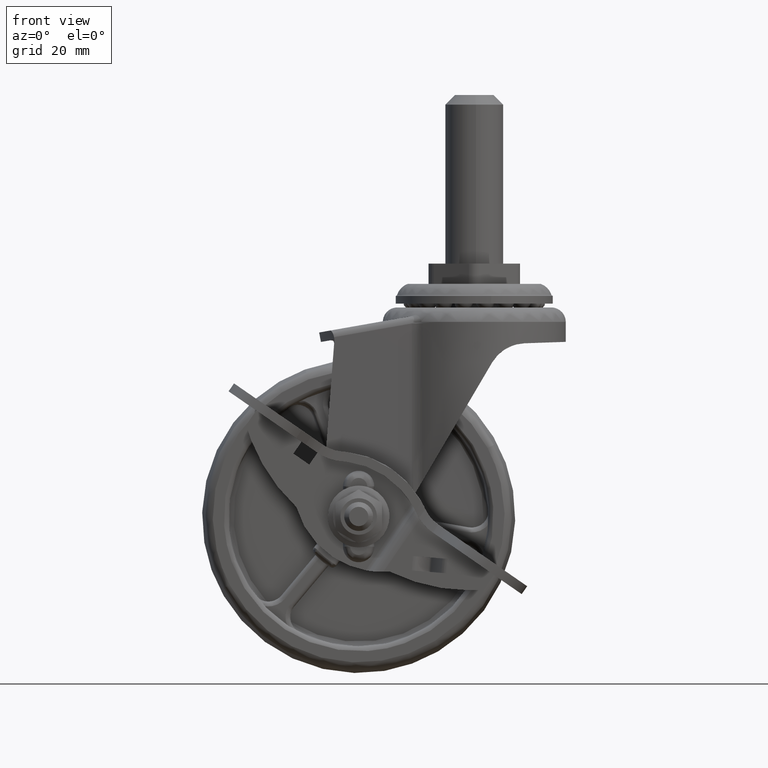
[diagram: clean part render]
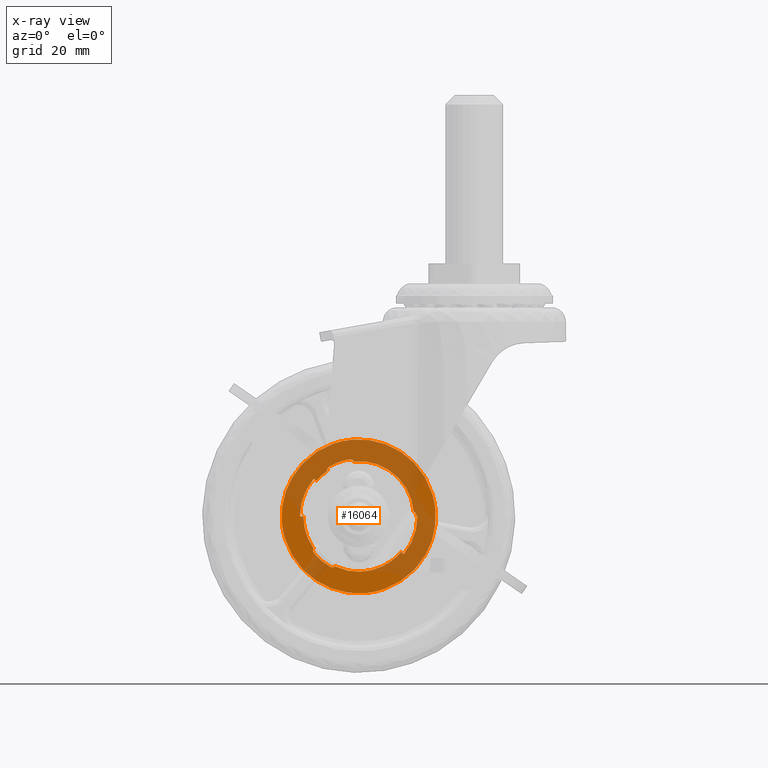
[diagram: x-ray — body ghosted, one internal face saturated and labeled with its STEP entity id]
A machine part, front view, then the same camera in x-ray: the body is ghosted and one INTERNAL B-rep face — a face not visible from any outside direction — is saturated and labeled: STEP entity #16064.
In plain terms, the highlighted face is a freeform B-spline surface patch.
Its self-contained STEP definition (entity closure, byte-faithful):
#11132=CARTESIAN_POINT('',(11.999999995057530,9.989464000000000,0.000000138102946));
#11133=VERTEX_POINT('',#11132);
#11176=CARTESIAN_POINT('',(12.196216727670150,9.989464000000000,0.000000140361121));
#11177=VERTEX_POINT('',#11176);
#11183=CARTESIAN_POINT('',(12.196216727670150,9.989464000000000,0.000000140361121));
#11184=CARTESIAN_POINT('',(11.999999995057530,9.989464000000000,0.000000138102946));
#11185=QUASI_UNIFORM_CURVE('',1,(#11183,#11184),.UNSPECIFIED.,.F.,.U.);
#11186=EDGE_CURVE('',#11177,#11133,#11185,.T.);
#11406=CARTESIAN_POINT('',(11.999586439256150,9.989464000000000,0.099625138396795));
#11407=VERTEX_POINT('',#11406);
#11413=CARTESIAN_POINT('',(11.633074377598090,9.989464000000000,0.865103822727138));
#11414=VERTEX_POINT('',#11413);
#11415=CARTESIAN_POINT('',(11.633074377598080,9.989464000000000,0.865103822727127));
#11416=CARTESIAN_POINT('',(11.995695780086274,9.989464000000002,0.568244823806760));
#11417=CARTESIAN_POINT('',(11.999586439256140,9.989464000000000,0.099625138396796));
#11425=(BOUNDED_CURVE()B_SPLINE_CURVE(2,(#11415,#11416,#11417),.UNSPECIFIED.,.F.,.U.)CURVE()GEOMETRIC_REPRESENTATION_ITEM()QUASI_UNIFORM_CURVE()RATIONAL_B_SPLINE_CURVE((1.0,0.905498659841875,1.0))REPRESENTATION_ITEM(''));
#11426=EDGE_CURVE('',#11414,#11407,#11425,.T.);
#11567=CARTESIAN_POINT('',(11.440751161396660,9.989464000000000,0.899015656450652));
#11568=VERTEX_POINT('',#11567);
#11569=CARTESIAN_POINT('',(11.440751161396660,9.989464000000000,0.899015656450652));
#11570=CARTESIAN_POINT('',(11.633074377598090,9.989464000000000,0.865103822727138));
#11571=QUASI_UNIFORM_CURVE('',1,(#11569,#11570),.UNSPECIFIED.,.F.,.U.);
#11572=EDGE_CURVE('',#11568,#11414,#11571,.T.);
#12015=CARTESIAN_POINT('',(11.999586439256140,9.989464000000000,0.099625138396795));
#12016=CARTESIAN_POINT('',(11.999999994484241,9.989464000000000,0.049813496608404));
#12017=CARTESIAN_POINT('',(11.999999995057520,9.989464000000000,0.000000138102945));
#12025=(BOUNDED_CURVE()B_SPLINE_CURVE(2,(#12015,#12016,#12017),.UNSPECIFIED.,.F.,.U.)CURVE()GEOMETRIC_REPRESENTATION_ITEM()QUASI_UNIFORM_CURVE()RATIONAL_B_SPLINE_CURVE((1.0,0.999991384240905,1.0))REPRESENTATION_ITEM(''));
#12026=EDGE_CURVE('',#11407,#11133,#12025,.T.);
#12618=CARTESIAN_POINT('',(-15.341112789968591,9.989463999999998,-4.544255511574828));
#12619=VERTEX_POINT('',#12618);
#12625=CARTESIAN_POINT('',(-5.472322463989258,9.989464000000000,15.035081863403320));
#12626=VERTEX_POINT('',#12625);
#12627=CARTESIAN_POINT('',(-5.472322463989258,9.989464000000000,15.035081863403320));
#12628=CARTESIAN_POINT('',(-19.615924261196056,9.989463999999998,9.887231619569965));
#12629=CARTESIAN_POINT('',(-15.341112789968589,9.989463999999998,-4.544255511574828));
#12637=(BOUNDED_CURVE()B_SPLINE_CURVE(2,(#12627,#12628,#12629),.UNSPECIFIED.,.F.,.U.)B_SPLINE_CURVE_WITH_KNOTS((3,3),(0.500000000000000,0.739333072709235),.UNSPECIFIED.)CURVE()GEOMETRIC_REPRESENTATION_ITEM()RATIONAL_B_SPLINE_CURVE((1.0,0.719603863862712,0.976072278425698))REPRESENTATION_ITEM(''));
#12638=EDGE_CURVE('',#12626,#12619,#12637,.T.);
#12640=CARTESIAN_POINT('',(15.341112789968580,9.989464000000000,4.544255511574832));
#12641=VERTEX_POINT('',#12640);
#12642=CARTESIAN_POINT('',(15.341112789968587,9.989464000000000,4.544255511574832));
#12643=CARTESIAN_POINT('',(15.202274682966049,9.989464000000000,5.012963983985125));
#12644=CARTESIAN_POINT('',(15.035081863400270,9.989464000000000,5.472322463988355));
#12645=CARTESIAN_POINT('',(9.562759399412581,9.989464000000000,20.507404327392134));
#12646=CARTESIAN_POINT('',(-5.472322463989258,9.989464000000000,15.035081863403320));
#12654=(BOUNDED_CURVE()B_SPLINE_CURVE(2,(#12642,#12643,#12644,#12645,#12646),.UNSPECIFIED.,.F.,.U.)B_SPLINE_CURVE_WITH_KNOTS((3,2,3),(0.239333072709235,0.250000000000000,0.500000000000000),.UNSPECIFIED.)CURVE()GEOMETRIC_REPRESENTATION_ITEM()RATIONAL_B_SPLINE_CURVE((0.976072278425698,0.987502917323836,1.0,0.707106781186548,1.0))REPRESENTATION_ITEM(''));
#12655=EDGE_CURVE('',#12641,#12626,#12654,.T.);
#12685=CARTESIAN_POINT('',(5.472322463989258,9.989464000000000,-15.035081863403320));
#12686=VERTEX_POINT('',#12685);
#12687=CARTESIAN_POINT('',(5.472322463989258,9.989464000000000,-15.035081863403320));
#12688=CARTESIAN_POINT('',(19.615924261196060,9.989464000000000,-9.887231619569965));
#12689=CARTESIAN_POINT('',(15.341112789968587,9.989464000000000,4.544255511574832));
#12697=(BOUNDED_CURVE()B_SPLINE_CURVE(2,(#12687,#12688,#12689),.UNSPECIFIED.,.F.,.U.)B_SPLINE_CURVE_WITH_KNOTS((3,3),(0.0,0.239333072709235),.UNSPECIFIED.)CURVE()GEOMETRIC_REPRESENTATION_ITEM()RATIONAL_B_SPLINE_CURVE((1.0,0.719603863862712,0.976072278425698))REPRESENTATION_ITEM(''));
#12698=EDGE_CURVE('',#12686,#12641,#12697,.T.);
#12700=CARTESIAN_POINT('',(-15.341112789968589,9.989463999999998,-4.544255511574828));
#12701=CARTESIAN_POINT('',(-15.202274682966051,9.989463999999998,-5.012963983985123));
#12702=CARTESIAN_POINT('',(-15.035081863400270,9.989463999999996,-5.472322463988355));
#12703=CARTESIAN_POINT('',(-9.562759399412581,9.989463999999998,-20.507404327392134));
#12704=CARTESIAN_POINT('',(5.472322463989258,9.989464000000000,-15.035081863403320));
#12712=(BOUNDED_CURVE()B_SPLINE_CURVE(2,(#12700,#12701,#12702,#12703,#12704),.UNSPECIFIED.,.F.,.U.)B_SPLINE_CURVE_WITH_KNOTS((3,2,3),(0.739333072709235,0.750000000000000,1.0),.UNSPECIFIED.)CURVE()GEOMETRIC_REPRESENTATION_ITEM()RATIONAL_B_SPLINE_CURVE((0.976072278425698,0.987502917323835,1.0,0.707106781186548,1.0))REPRESENTATION_ITEM(''));
#12713=EDGE_CURVE('',#12619,#12686,#12712,.T.);
#14373=CARTESIAN_POINT('',(8.791140809123869,9.989464000000000,-7.376642838154736));
#14374=VERTEX_POINT('',#14373);
#14388=CARTESIAN_POINT('',(9.342844141528797,9.989464000000000,-7.839576890075173));
#14389=VERTEX_POINT('',#14388);
#14390=CARTESIAN_POINT('',(8.791140809123869,9.989464000000000,-7.376642838154736));
#14391=CARTESIAN_POINT('',(9.342844141528797,9.989464000000000,-7.839576890075173));
#14392=QUASI_UNIFORM_CURVE('',1,(#14390,#14391),.UNSPECIFIED.,.F.,.U.);
#14393=EDGE_CURVE('',#14374,#14389,#14392,.T.);
#14505=CARTESIAN_POINT('',(-1.168099764341404,9.989464000000000,11.606565458169561));
#14506=VERTEX_POINT('',#14505);
#14507=CARTESIAN_POINT('',(-1.101306713718012,9.989464000000000,11.423052998645440));
#14508=VERTEX_POINT('',#14507);
#14509=CARTESIAN_POINT('',(-1.168099764341404,9.989464000000000,11.606565458169561));
#14510=CARTESIAN_POINT('',(-1.101306713718012,9.989464000000000,11.423052998645440));
#14511=QUASI_UNIFORM_CURVE('',1,(#14509,#14510),.UNSPECIFIED.,.F.,.U.);
#14512=EDGE_CURVE('',#14506,#14508,#14511,.T.);
#14583=CARTESIAN_POINT('',(-5.067335301406310,9.989464000000000,-10.507089846477349));
#14584=VERTEX_POINT('',#14583);
#14598=CARTESIAN_POINT('',(-4.941805183812122,9.989464000000000,-10.357488972371170));
#14599=VERTEX_POINT('',#14598);
#14600=CARTESIAN_POINT('',(-4.941805183812122,9.989464000000000,-10.357488972371170));
#14601=CARTESIAN_POINT('',(-5.067335301406310,9.989464000000000,-10.507089846477349));
#14602=QUASI_UNIFORM_CURVE('',1,(#14600,#14601),.UNSPECIFIED.,.F.,.U.);
#14603=EDGE_CURVE('',#14599,#14584,#14602,.T.);
#15218=CARTESIAN_POINT('',(9.342844141528797,9.989464000000000,-7.839576890075173));
#15219=CARTESIAN_POINT('',(12.196216778757416,9.989464000000000,-4.439059719170345));
#15220=CARTESIAN_POINT('',(12.196216727670150,9.989464000000000,0.000000140361119));
#15228=(BOUNDED_CURVE()B_SPLINE_CURVE(2,(#15218,#15219,#15220),.UNSPECIFIED.,.F.,.U.)CURVE()GEOMETRIC_REPRESENTATION_ITEM()QUASI_UNIFORM_CURVE()RATIONAL_B_SPLINE_CURVE((1.0,0.939692620785909,1.0))REPRESENTATION_ITEM(''));
#15229=EDGE_CURVE('',#14389,#11177,#15228,.T.);
#15516=CARTESIAN_POINT('',(-9.342844141528850,9.989464000000000,7.839576890075174));
#15517=VERTEX_POINT('',#15516);
#15523=CARTESIAN_POINT('',(-12.196216727670089,9.989464000000000,-0.000000140361154));
#15524=VERTEX_POINT('',#15523);
#15525=CARTESIAN_POINT('',(-12.196216727670089,9.989464000000000,-0.000000140361154));
#15526=CARTESIAN_POINT('',(-12.196216778757430,9.989464000000000,4.439059719170313));
#15527=CARTESIAN_POINT('',(-9.342844141528863,9.989464000000000,7.839576890075183));
#15535=(BOUNDED_CURVE()B_SPLINE_CURVE(2,(#15525,#15526,#15527),.UNSPECIFIED.,.F.,.U.)CURVE()GEOMETRIC_REPRESENTATION_ITEM()QUASI_UNIFORM_CURVE()RATIONAL_B_SPLINE_CURVE((1.0,0.939692620785909,1.0))REPRESENTATION_ITEM(''));
#15536=EDGE_CURVE('',#15524,#15517,#15535,.T.);
#15660=CARTESIAN_POINT('',(-11.476019182954619,9.989464000000000,-0.000000132072698));
#15661=VERTEX_POINT('',#15660);
#15662=CARTESIAN_POINT('',(-11.476019182954619,9.989464000000000,-0.000000132072698));
#15663=CARTESIAN_POINT('',(-12.196216727670089,9.989464000000000,-0.000000140361154));
#15664=QUASI_UNIFORM_CURVE('',1,(#15662,#15663),.UNSPECIFIED.,.F.,.U.);
#15665=EDGE_CURVE('',#15661,#15524,#15664,.T.);
#15689=CARTESIAN_POINT('',(-8.791140809123885,9.989464000000000,7.376642838154721));
#15690=VERTEX_POINT('',#15689);
#15704=CARTESIAN_POINT('',(-9.342844141528850,9.989464000000000,7.839576890075174));
#15705=CARTESIAN_POINT('',(-8.791140809123885,9.989464000000000,7.376642838154721));
#15706=QUASI_UNIFORM_CURVE('',1,(#15704,#15705),.UNSPECIFIED.,.F.,.U.);
#15707=EDGE_CURVE('',#15517,#15690,#15706,.T.);
#15794=CARTESIAN_POINT('',(-9.342000728743940,9.989464000000000,-6.665286090760872));
#15795=VERTEX_POINT('',#15794);
#15796=CARTESIAN_POINT('',(-11.476019182954630,9.989464000000000,-0.000000132072699));
#15797=CARTESIAN_POINT('',(-11.476019140669038,9.989464000000000,-3.674266457411352));
#15798=CARTESIAN_POINT('',(-9.342000728743946,9.989464000000000,-6.665286090760873));
#15806=(BOUNDED_CURVE()B_SPLINE_CURVE(2,(#15796,#15797,#15798),.UNSPECIFIED.,.F.,.U.)CURVE()GEOMETRIC_REPRESENTATION_ITEM()QUASI_UNIFORM_CURVE()RATIONAL_B_SPLINE_CURVE((1.0,0.952377397784105,1.0))REPRESENTATION_ITEM(''));
#15807=EDGE_CURVE('',#15661,#15795,#15806,.T.);
#15828=CARTESIAN_POINT('',(-4.941805183812128,9.989464000000000,-10.357488972371170));
#15829=CARTESIAN_POINT('',(3.078820703020352,9.989463999999998,-14.184321005762403));
#15830=CARTESIAN_POINT('',(8.791140809123872,9.989464000000000,-7.376642838154737));
#15838=(BOUNDED_CURVE()B_SPLINE_CURVE(2,(#15828,#15829,#15830),.UNSPECIFIED.,.F.,.U.)CURVE()GEOMETRIC_REPRESENTATION_ITEM()QUASI_UNIFORM_CURVE()RATIONAL_B_SPLINE_CURVE((1.0,0.790652580284592,1.0))REPRESENTATION_ITEM(''));
#15839=EDGE_CURVE('',#14599,#14374,#15838,.T.);
#15876=CARTESIAN_POINT('',(11.440751161396660,9.989464000000000,0.899015656450652));
#15877=CARTESIAN_POINT('',(11.373993590018429,9.989463999999998,1.750932839040420));
#15878=CARTESIAN_POINT('',(11.129965740374640,9.989463999999995,3.017385475363239));
#15879=CARTESIAN_POINT('',(10.397661579830819,9.989463999999977,4.977117995920771));
#15880=CARTESIAN_POINT('',(9.474246630420891,9.989464000000055,6.593723317675672));
#15881=CARTESIAN_POINT('',(7.992517283171692,9.989463999999989,8.334698931362409));
#15882=CARTESIAN_POINT('',(6.274737664811349,9.989463999999879,9.704983214802695));
#15883=CARTESIAN_POINT('',(4.360350702172712,9.989464000000272,10.673771325348500));
#15884=CARTESIAN_POINT('',(2.723621025964035,9.989463999999769,11.181831031009750));
#15885=CARTESIAN_POINT('',(0.943091161891926,9.989464000000229,11.488787910102340));
#15886=CARTESIAN_POINT('',(-0.297999966877077,9.989463999999964,11.500625423858850));
#15887=CARTESIAN_POINT('',(-1.101306713718012,9.989464000000000,11.423052998645440));
#15888=B_SPLINE_CURVE_WITH_KNOTS('',3,(#15876,#15877,#15878,#15879,#15880,#15881,#15882,#15883,#15884,#15885,#15886,#15887),.UNSPECIFIED.,.F.,.U.,(4,1,1,1,1,1,1,1,1,4),(0.000000063351969,2.563546760609333,3.845320399427910,6.266451215949543,8.117940839693809,10.681439668791230,12.817730960651120,14.526777344414180,15.808565063551921,18.229672184894579),.UNSPECIFIED.);
#15889=EDGE_CURVE('',#11568,#14508,#15888,.T.);
#15893=CARTESIAN_POINT('',(-6.498945977584548,9.989464000000000,9.458473315920518));
#15894=VERTEX_POINT('',#15893);
#15914=CARTESIAN_POINT('',(-6.498945977584546,9.989464000000000,9.458473315920518));
#15915=CARTESIAN_POINT('',(-7.786769800751788,9.989464000000000,8.573605623655347));
#15916=CARTESIAN_POINT('',(-8.791140809123888,9.989464000000000,7.376642838154726));
#15924=(BOUNDED_CURVE()B_SPLINE_CURVE(2,(#15914,#15915,#15916),.UNSPECIFIED.,.F.,.U.)CURVE()GEOMETRIC_REPRESENTATION_ITEM()QUASI_UNIFORM_CURVE()RATIONAL_B_SPLINE_CURVE((1.0,0.990857747477867,1.0))REPRESENTATION_ITEM(''));
#15925=EDGE_CURVE('',#15894,#15690,#15924,.T.);
#15936=CARTESIAN_POINT('',(-10.517709030807101,9.989464000000000,-22.555959272836439));
#15937=CARTESIAN_POINT('',(-22.555724238223231,9.989464000000000,10.518214500259200));
#15938=CARTESIAN_POINT('',(22.555723406968550,9.989464000000000,-10.518213889420061));
#15939=CARTESIAN_POINT('',(10.517708199552420,9.989464000000000,22.555959883675580));
#15940=B_SPLINE_SURFACE_WITH_KNOTS('',1,1,((#15936,#15938),(#15937,#15939)),.UNSPECIFIED.,.F.,.F.,.U.,(2,2),(2,2),(0.0,35.196800734262467),(0.0,35.196011821689353),.UNSPECIFIED.);
#15941=ORIENTED_EDGE('',*,*,#12698,.T.);
#15942=ORIENTED_EDGE('',*,*,#12655,.T.);
#15943=ORIENTED_EDGE('',*,*,#12638,.T.);
#15944=ORIENTED_EDGE('',*,*,#12713,.T.);
#15945=EDGE_LOOP('',(#15941,#15942,#15943,#15944));
#15946=FACE_OUTER_BOUND('',#15945,.T.);
#15947=ORIENTED_EDGE('',*,*,#11186,.F.);
#15948=ORIENTED_EDGE('',*,*,#15229,.F.);
#15949=ORIENTED_EDGE('',*,*,#14393,.F.);
#15950=ORIENTED_EDGE('',*,*,#15839,.F.);
#15951=ORIENTED_EDGE('',*,*,#14603,.T.);
#15952=CARTESIAN_POINT('',(-5.913515318920901,9.989464000000000,-10.441759260501479));
#15953=VERTEX_POINT('',#15952);
#15954=CARTESIAN_POINT('',(-5.067335301406308,9.989464000000000,-10.507089846477349));
#15955=CARTESIAN_POINT('',(-5.505733437057462,9.989464000000000,-10.672699693527891));
#15956=CARTESIAN_POINT('',(-5.913515318920900,9.989464000000000,-10.441759260501479));
#15964=(BOUNDED_CURVE()B_SPLINE_CURVE(2,(#15954,#15955,#15956),.UNSPECIFIED.,.F.,.U.)CURVE()GEOMETRIC_REPRESENTATION_ITEM()QUASI_UNIFORM_CURVE()RATIONAL_B_SPLINE_CURVE((1.0,0.905498659841874,1.0))REPRESENTATION_ITEM(''));
#15965=EDGE_CURVE('',#14584,#15953,#15964,.T.);
#15966=ORIENTED_EDGE('',*,*,#15965,.T.);
#15967=CARTESIAN_POINT('',(-9.256255113775453,9.989464000000000,-7.636867234022489));
#15968=VERTEX_POINT('',#15967);
#15969=CARTESIAN_POINT('',(-5.913515318920901,9.989464000000000,-10.441759260501479));
#15970=CARTESIAN_POINT('',(-7.844197620418852,9.989464000000000,-9.348349703640150));
#15971=CARTESIAN_POINT('',(-9.256255113775453,9.989464000000000,-7.636867234022489));
#15979=(BOUNDED_CURVE()B_SPLINE_CURVE(2,(#15969,#15970,#15971),.UNSPECIFIED.,.F.,.U.)CURVE()GEOMETRIC_REPRESENTATION_ITEM()QUASI_UNIFORM_CURVE()RATIONAL_B_SPLINE_CURVE((1.0,0.983332160458345,1.0))REPRESENTATION_ITEM(''));
#15980=EDGE_CURVE('',#15953,#15968,#15979,.T.);
#15981=ORIENTED_EDGE('',*,*,#15980,.T.);
#15982=CARTESIAN_POINT('',(-9.467530655291116,9.989464000000000,-6.814886799159062));
#15983=VERTEX_POINT('',#15982);
#15984=CARTESIAN_POINT('',(-9.256255113775445,9.989464000000000,-7.636867234022486));
#15985=CARTESIAN_POINT('',(-9.554497707380872,9.989464000000000,-7.275382681835004));
#15986=CARTESIAN_POINT('',(-9.467530655291110,9.989464000000000,-6.814886799159062));
#15994=(BOUNDED_CURVE()B_SPLINE_CURVE(2,(#15984,#15985,#15986),.UNSPECIFIED.,.F.,.U.)CURVE()GEOMETRIC_REPRESENTATION_ITEM()QUASI_UNIFORM_CURVE()RATIONAL_B_SPLINE_CURVE((1.0,0.905498593271363,1.0))REPRESENTATION_ITEM(''));
#15995=EDGE_CURVE('',#15968,#15983,#15994,.T.);
#15996=ORIENTED_EDGE('',*,*,#15995,.T.);
#15997=CARTESIAN_POINT('',(-9.467530655291116,9.989464000000000,-6.814886799159062));
#15998=CARTESIAN_POINT('',(-9.342000728743940,9.989464000000000,-6.665286090760872));
#15999=QUASI_UNIFORM_CURVE('',1,(#15997,#15998),.UNSPECIFIED.,.F.,.U.);
#16000=EDGE_CURVE('',#15983,#15795,#15999,.T.);
#16001=ORIENTED_EDGE('',*,*,#16000,.T.);
#16002=ORIENTED_EDGE('',*,*,#15807,.F.);
#16003=ORIENTED_EDGE('',*,*,#15665,.T.);
#16004=ORIENTED_EDGE('',*,*,#15536,.T.);
#16005=ORIENTED_EDGE('',*,*,#15707,.T.);
#16006=ORIENTED_EDGE('',*,*,#15925,.F.);
#16007=CARTESIAN_POINT('',(-6.565739076191768,9.989464000000000,9.641986023750228));
#16008=VERTEX_POINT('',#16007);
#16009=CARTESIAN_POINT('',(-6.498945977584548,9.989464000000000,9.458473315920518));
#16010=CARTESIAN_POINT('',(-6.565739076191768,9.989464000000000,9.641986023750228));
#16011=QUASI_UNIFORM_CURVE('',1,(#16009,#16010),.UNSPECIFIED.,.F.,.U.);
#16012=EDGE_CURVE('',#15894,#16008,#16011,.T.);
#16013=ORIENTED_EDGE('',*,*,#16012,.T.);
#16014=CARTESIAN_POINT('',(-6.086071120335233,9.989464000000000,10.342134122104691));
#16015=VERTEX_POINT('',#16014);
#16016=CARTESIAN_POINT('',(-6.565739076191762,9.989464000000000,9.641986023750226));
#16017=CARTESIAN_POINT('',(-6.489962343028802,9.989464000000000,10.104454869721131));
#16018=CARTESIAN_POINT('',(-6.086071120335229,9.989464000000000,10.342134122104680));
#16026=(BOUNDED_CURVE()B_SPLINE_CURVE(2,(#16016,#16017,#16018),.UNSPECIFIED.,.F.,.U.)CURVE()GEOMETRIC_REPRESENTATION_ITEM()QUASI_UNIFORM_CURVE()RATIONAL_B_SPLINE_CURVE((1.0,0.905498659841874,1.0))REPRESENTATION_ITEM(''));
#16027=EDGE_CURVE('',#16008,#16015,#16026,.T.);
#16028=ORIENTED_EDGE('',*,*,#16027,.T.);
#16029=CARTESIAN_POINT('',(-1.985593473104738,9.989464000000000,11.834585689450400));
#16030=VERTEX_POINT('',#16029);
#16031=CARTESIAN_POINT('',(-6.086071120335234,9.989464000000000,10.342134122104680));
#16032=CARTESIAN_POINT('',(-4.173809516603670,9.989464000000000,11.467449263408245));
#16033=CARTESIAN_POINT('',(-1.985593473104747,9.989464000000000,11.834585689450410));
#16041=(BOUNDED_CURVE()B_SPLINE_CURVE(2,(#16031,#16032,#16033),.UNSPECIFIED.,.F.,.U.)CURVE()GEOMETRIC_REPRESENTATION_ITEM()QUASI_UNIFORM_CURVE()RATIONAL_B_SPLINE_CURVE((1.0,0.983332160458344,1.0))REPRESENTATION_ITEM(''));
#16042=EDGE_CURVE('',#16015,#16030,#16041,.T.);
#16043=ORIENTED_EDGE('',*,*,#16042,.T.);
#16044=CARTESIAN_POINT('',(-1.985593473104741,9.989464000000000,11.834585689450410));
#16045=CARTESIAN_POINT('',(-1.523417371032019,9.989464000000000,11.912129075909528));
#16046=CARTESIAN_POINT('',(-1.168099764341395,9.989464000000000,11.606565458169570));
#16054=(BOUNDED_CURVE()B_SPLINE_CURVE(2,(#16044,#16045,#16046),.UNSPECIFIED.,.F.,.U.)CURVE()GEOMETRIC_REPRESENTATION_ITEM()QUASI_UNIFORM_CURVE()RATIONAL_B_SPLINE_CURVE((1.0,0.905498593271360,1.0))REPRESENTATION_ITEM(''));
#16055=EDGE_CURVE('',#16030,#14506,#16054,.T.);
#16056=ORIENTED_EDGE('',*,*,#16055,.T.);
#16057=ORIENTED_EDGE('',*,*,#14512,.T.);
#16058=ORIENTED_EDGE('',*,*,#15889,.F.);
#16059=ORIENTED_EDGE('',*,*,#11572,.T.);
#16060=ORIENTED_EDGE('',*,*,#11426,.T.);
#16061=ORIENTED_EDGE('',*,*,#12026,.T.);
#16062=EDGE_LOOP('',(#15947,#15948,#15949,#15950,#15951,#15966,#15981,#15996,#16001,#16002,#16003,#16004,#16005,#16006,#16013,#16028,#16043,#16056,#16057,#16058,#16059,#16060,#16061));
#16063=FACE_BOUND('',#16062,.T.);
#16064=ADVANCED_FACE('',(#15946,#16063),#15940,.F.);